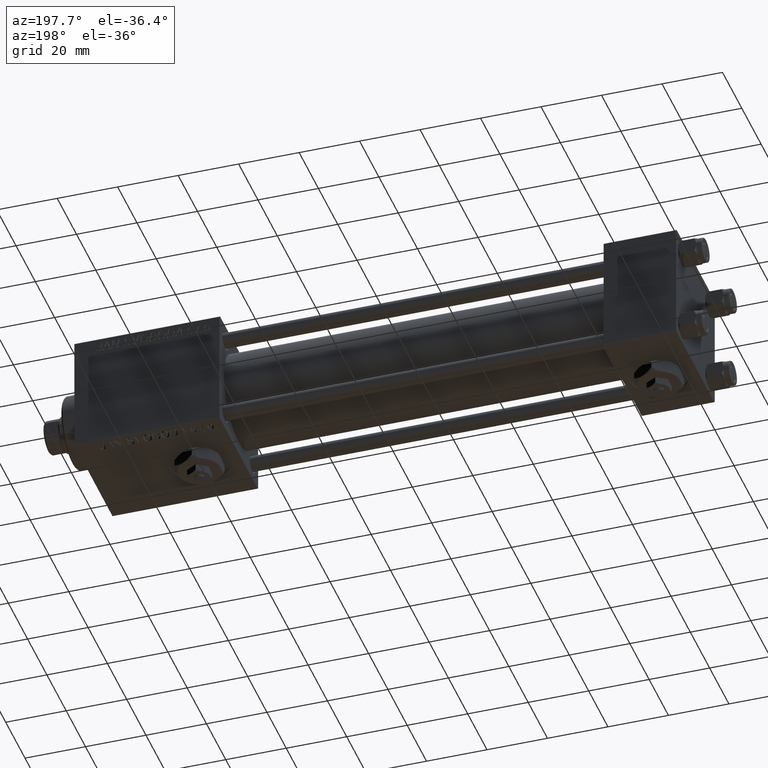
[diagram: clean part render]
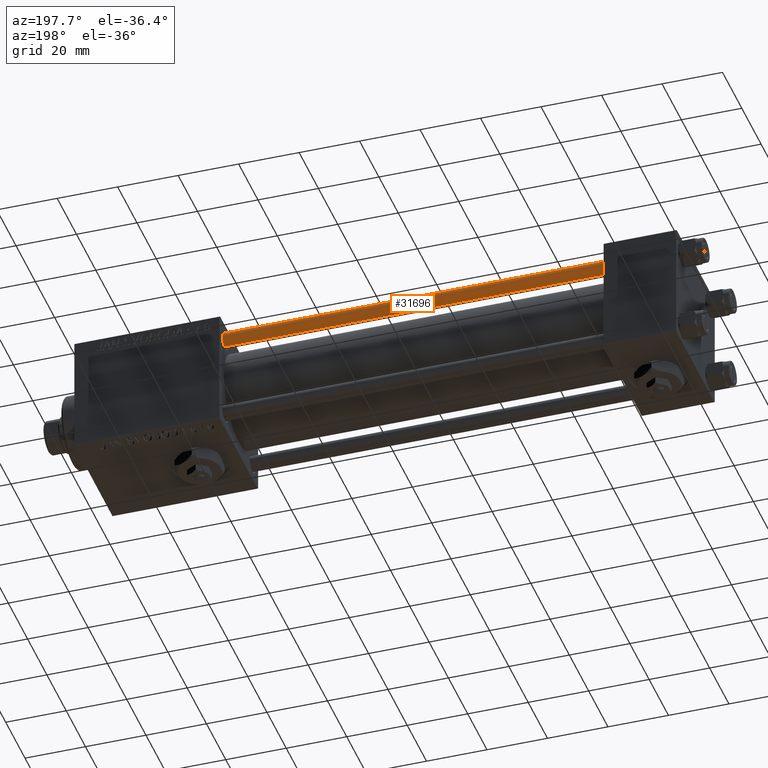
[diagram: same view with one face highlighted and labeled with its STEP entity id]
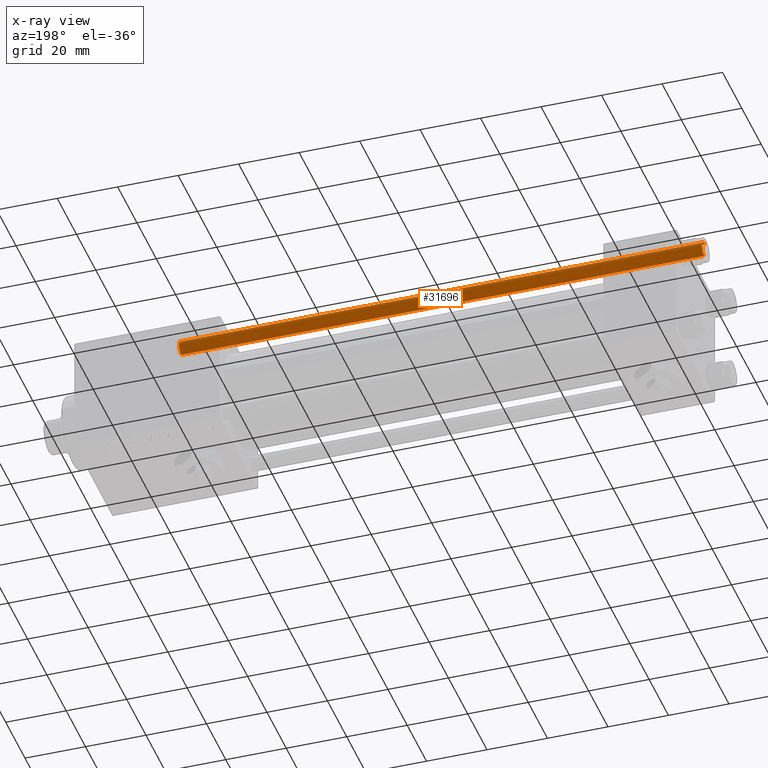
[diagram: x-ray of the same camera — body ghosted, the highlighted face saturated]
A machine part, auxiliary view. The second image highlights one B-rep face of the part: STEP entity #31696.
The next image is the same camera in x-ray: the body ghosted, the highlighted face saturated — about 0% of this face is hidden behind the body in this view.
In plain terms, the highlighted cylindrical surface (edge-blend (fillet) strip) has radius 2.5 mm, axis along (-1, 0, 0).
Its self-contained STEP definition (entity closure, byte-faithful):
#258 = CARTESIAN_POINT ( 'NONE',  ( 0.000000000000000000, 0.000000000000000000, 173.5000000000000000 ) ) ;
#504 = CARTESIAN_POINT ( 'NONE',  ( -2.500000000000000000, 0.000000000000000000, 173.5000000000000000 ) ) ;
#1301 = VECTOR ( 'NONE', #2380, 1000.000000000000000 ) ;
#1366 = DIRECTION ( 'NONE',  ( -0.000000000000000000, -0.000000000000000000, -1.000000000000000000 ) ) ;
#1804 = VERTEX_POINT ( 'NONE', #49209 ) ;
#2380 = DIRECTION ( 'NONE',  ( -0.000000000000000000, -0.000000000000000000, -1.000000000000000000 ) ) ;
#3594 = FACE_OUTER_BOUND ( 'NONE', #10171, .T. ) ;
#4137 = ORIENTED_EDGE ( 'NONE', *, *, #13769, .T. ) ;
#4547 = ORIENTED_EDGE ( 'NONE', *, *, #38306, .F. ) ;
#6698 = VECTOR ( 'NONE', #1366, 1000.000000000000000 ) ;
#6781 = DIRECTION ( 'NONE',  ( -1.000000000000000000, 0.000000000000000000, 0.000000000000000000 ) ) ;
#7904 = ORIENTED_EDGE ( 'NONE', *, *, #27692, .T. ) ;
#8434 = DIRECTION ( 'NONE',  ( 1.000000000000000000, 0.000000000000000000, 0.000000000000000000 ) ) ;
#10171 = EDGE_LOOP ( 'NONE', ( #17954, #4137, #7904, #4547 ) ) ;
#10301 = LINE ( 'NONE', #34804, #1301 ) ;
#12930 = DIRECTION ( 'NONE',  ( -0.000000000000000000, -0.000000000000000000, 1.000000000000000000 ) ) ;
#13190 = CARTESIAN_POINT ( 'NONE',  ( 0.000000000000000000, 0.000000000000000000, 0.5000000000000281997 ) ) ;
#13506 = CARTESIAN_POINT ( 'NONE',  ( -2.500000000000000000, 0.000000000000000000, 0.5000000000000281997 ) ) ;
#13746 = LINE ( 'NONE', #38509, #6698 ) ;
#13769 = EDGE_CURVE ( 'NONE', #1804, #41811, #10301, .T. ) ;
#17753 = AXIS2_PLACEMENT_3D ( 'NONE', #13190, #12930, #49317 ) ;
#17793 = CIRCLE ( 'NONE', #17753, 2.500000000000000000 ) ;
#17954 = ORIENTED_EDGE ( 'NONE', *, *, #50405, .T. ) ;
#20270 = DIRECTION ( 'NONE',  ( 0.000000000000000000, 0.000000000000000000, -1.000000000000000000 ) ) ;
#23364 = DIRECTION ( 'NONE',  ( -0.000000000000000000, -0.000000000000000000, -1.000000000000000000 ) ) ;
#27692 = EDGE_CURVE ( 'NONE', #41811, #39925, #17793, .T. ) ;
#31696 = ADVANCED_FACE ( 'NONE', ( #3594 ), #39975, .T. ) ;
#34804 = CARTESIAN_POINT ( 'NONE',  ( 2.500000000000000000, 3.061616997868383141E-16, 174.0000000000000000 ) ) ;
#36780 = AXIS2_PLACEMENT_3D ( 'NONE', #51853, #23364, #6781 ) ;
#38306 = EDGE_CURVE ( 'NONE', #43528, #39925, #13746, .T. ) ;
#38509 = CARTESIAN_POINT ( 'NONE',  ( -2.500000000000000000, 0.000000000000000000, 174.0000000000000000 ) ) ;
#38720 = CARTESIAN_POINT ( 'NONE',  ( 2.500000000000000000, 3.061616997868383141E-16, 0.5000000000000281997 ) ) ;
#39925 = VERTEX_POINT ( 'NONE', #13506 ) ;
#39975 = CYLINDRICAL_SURFACE ( 'NONE', #36780, 2.500000000000000000 ) ;
#40680 = AXIS2_PLACEMENT_3D ( 'NONE', #258, #20270, #8434 ) ;
#41811 = VERTEX_POINT ( 'NONE', #38720 ) ;
#43528 = VERTEX_POINT ( 'NONE', #504 ) ;
#49089 = CIRCLE ( 'NONE', #40680, 2.500000000000000000 ) ;
#49209 = CARTESIAN_POINT ( 'NONE',  ( 2.500000000000000000, 3.061616997868383141E-16, 173.5000000000000000 ) ) ;
#49317 = DIRECTION ( 'NONE',  ( 1.000000000000000000, 0.000000000000000000, 0.000000000000000000 ) ) ;
#50405 = EDGE_CURVE ( 'NONE', #43528, #1804, #49089, .T. ) ;
#51853 = CARTESIAN_POINT ( 'NONE',  ( 0.000000000000000000, 0.000000000000000000, 174.0000000000000000 ) ) ;